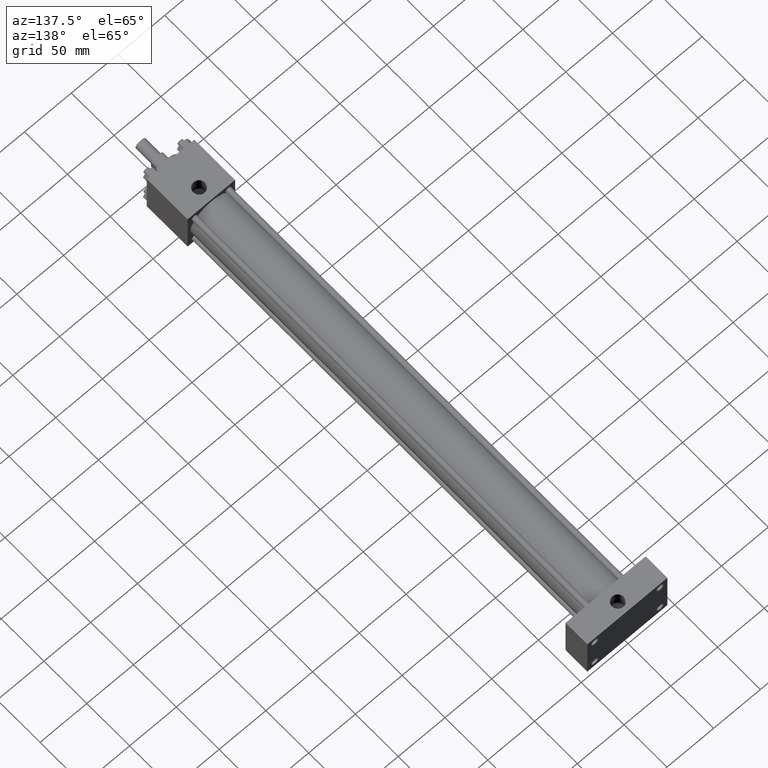
[diagram: clean part render]
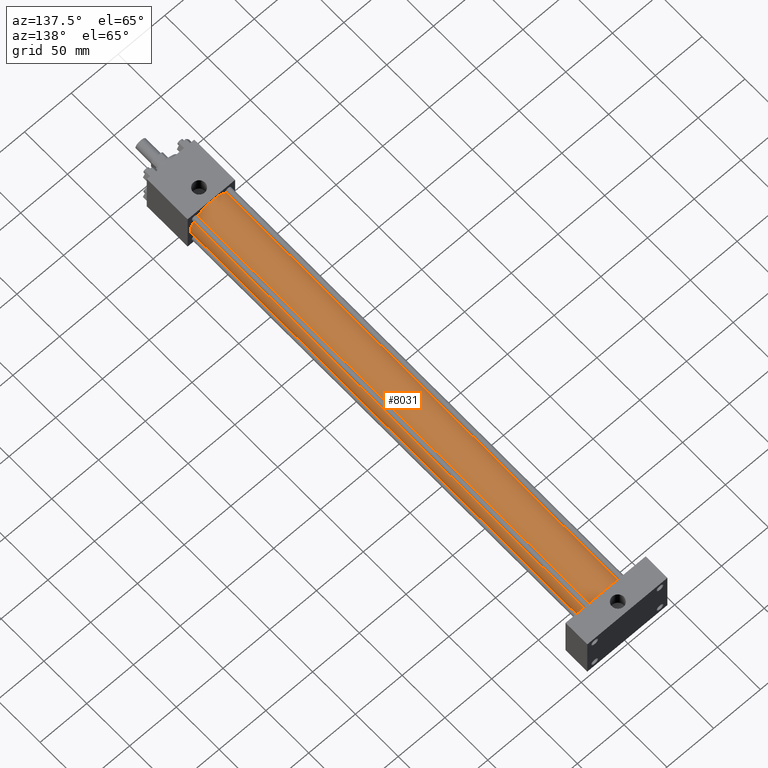
[diagram: same view with one face highlighted and labeled with its STEP entity id]
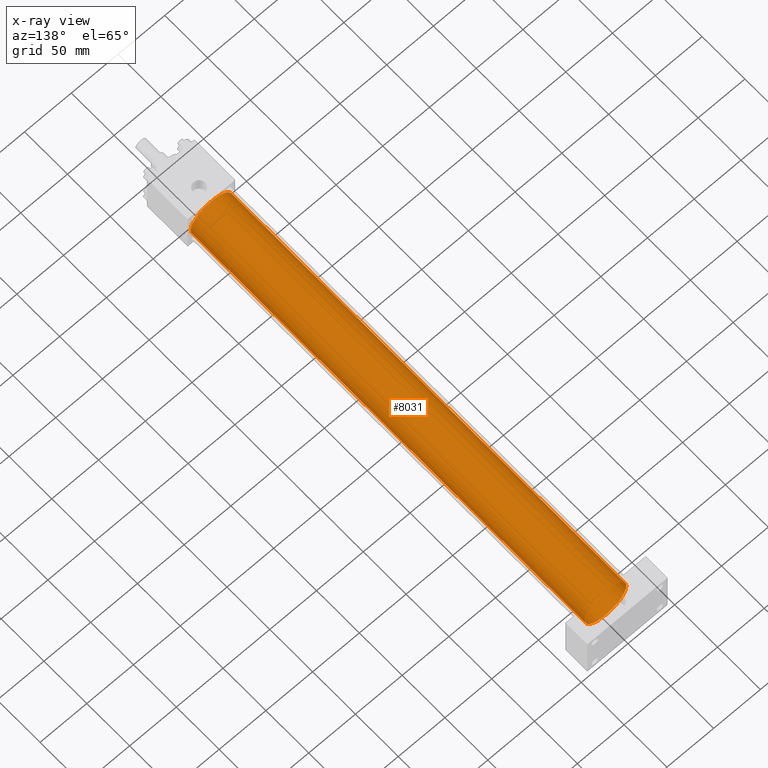
[diagram: x-ray of the same camera — body ghosted, the highlighted face saturated]
A machine part, auxiliary view. The second image highlights one B-rep face of the part: STEP entity #8031.
The next image is the same camera in x-ray: the body ghosted, the highlighted face saturated — about 0% of this face is hidden behind the body in this view.
In plain terms, the highlighted cylindrical surface (bore or boss wall) has radius 22.225 mm, axis along (0, -1, 0).
Its self-contained STEP definition (entity closure, byte-faithful):
#468=EDGE_CURVE('',#474,#474,#469,.T.);
#469=CIRCLE('',#470,2.222500000E+001);
#470=AXIS2_PLACEMENT_3D('',#471,#472,#473);
#471=CARTESIAN_POINT('',(0.000000000E+000,6.350000000E+001,0.000000000E+000));
#472=DIRECTION('',(0.0E+000,1.0E+000,0.0E+000));
#473=DIRECTION('',(1.0E+000,0.0E+000,0.0E+000));
#474=VERTEX_POINT('',#475);
#475=CARTESIAN_POINT('',(2.222500000E+001,6.350000000E+001,0.000000000E+000));
#2329=FACE_OUTER_BOUND('',#2331,.T.);
#2330=FACE_BOUND('',#2332,.T.);
#2331=EDGE_LOOP('',(#2333));
#2332=EDGE_LOOP('',(#2342));
#2333=ORIENTED_EDGE('',*,*,#2334,.F.);
#2334=EDGE_CURVE('',#2340,#2340,#2335,.T.);
#2335=CIRCLE('',#2336,2.222500000E+001);
#2336=AXIS2_PLACEMENT_3D('',#2337,#2338,#2339);
#2337=CARTESIAN_POINT('',(0.000000000E+000,5.238750000E+002,0.000000000E+000));
#2338=DIRECTION('',(0.0E+000,1.0E+000,0.0E+000));
#2339=DIRECTION('',(1.0E+000,0.0E+000,0.0E+000));
#2340=VERTEX_POINT('',#2341);
#2341=CARTESIAN_POINT('',(2.222500000E+001,5.238750000E+002,0.000000000E+000));
#2342=ORIENTED_EDGE('',*,*,#468,.T.);
#2343=CYLINDRICAL_SURFACE('',#2344,2.222500000E+001);
#2344=AXIS2_PLACEMENT_3D('',#2345,#2346,#2347);
#2345=CARTESIAN_POINT('',(0.000000000E+000,5.238750000E+002,0.000000000E+000));
#2346=DIRECTION('',(0.0E+000,-1.0E+000,0.0E+000));
#2347=DIRECTION('',(0.0E+000,0.0E+000,-1.0E+000));
#8031=ADVANCED_FACE('',(#2329,#2330),#2343,.T.);